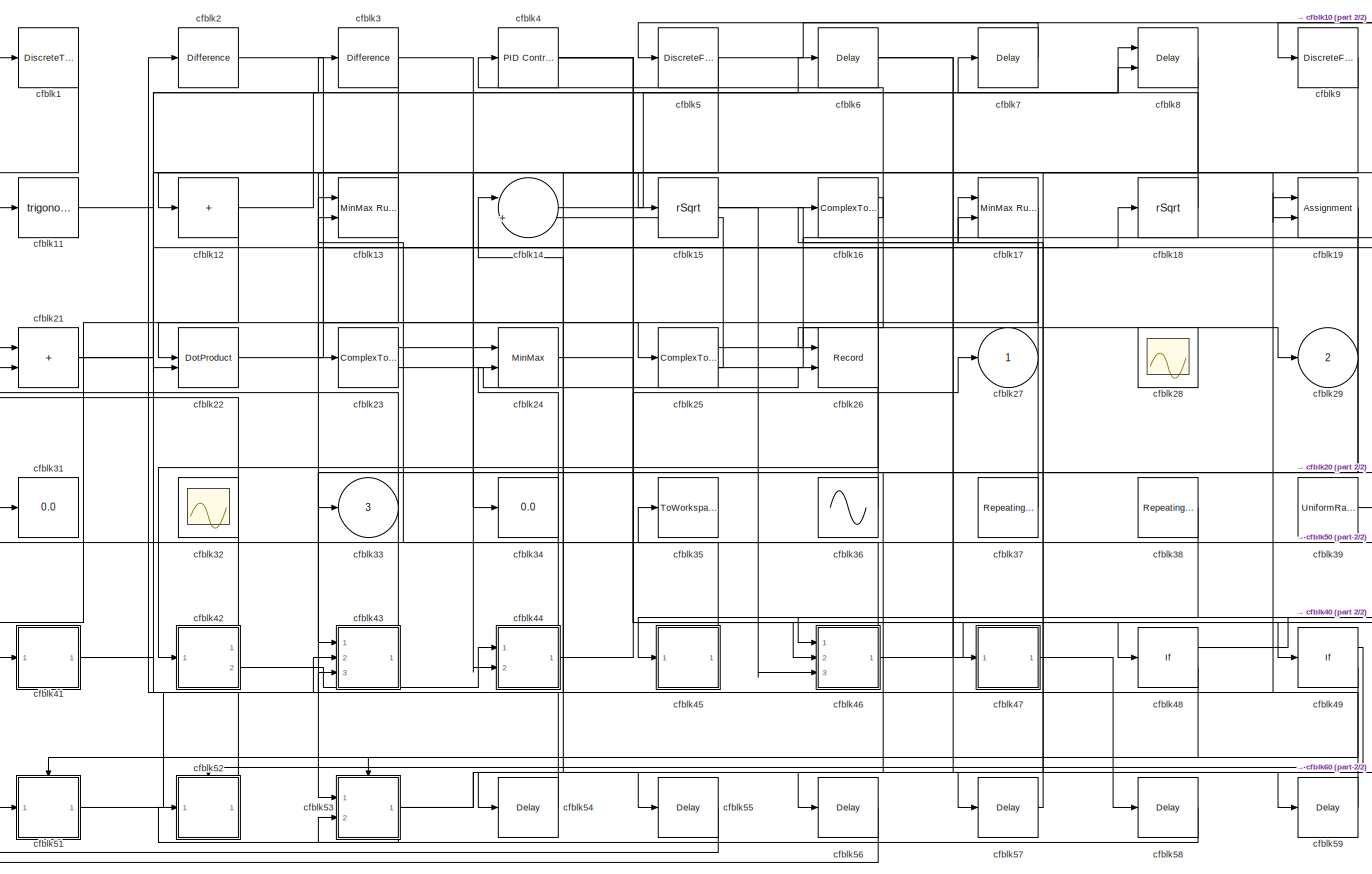
[diagram: root canvas - part 1/2, most of the canvas]
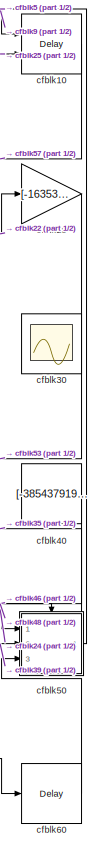
[diagram: root canvas - part 2/2, right side, full height]
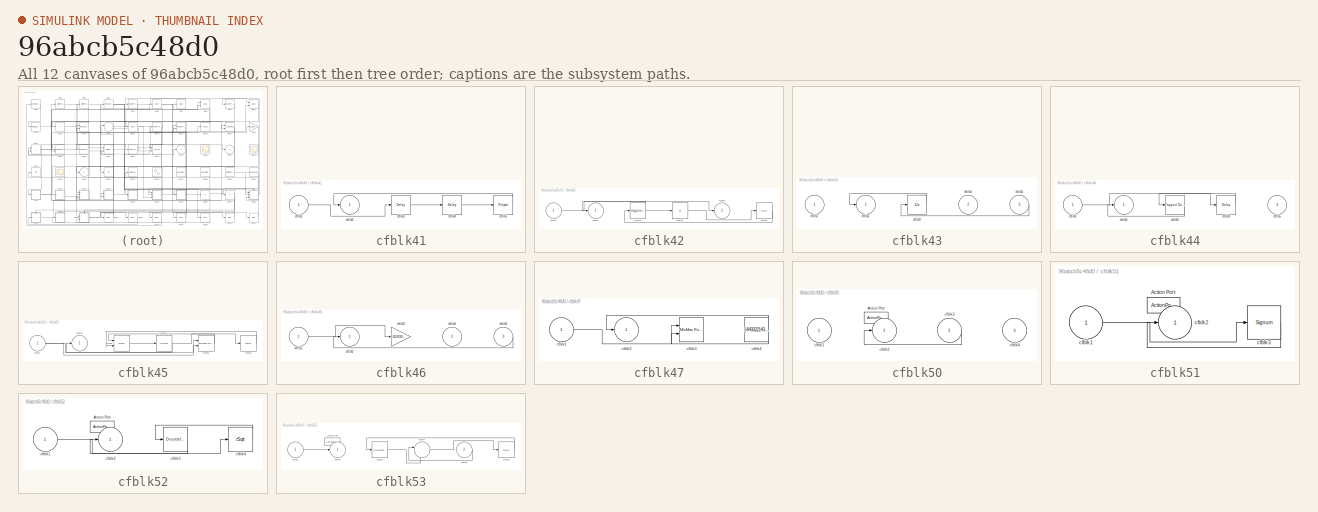
[diagram: thumbnail index - all 12 canvases of the model, root first then tree order]
MODEL slx_96abcb5c48d0
KIND model
CONFIG AbsTol = auto
CONFIG EnableMultiTasking = off
CONFIG FixedStep = auto
CONFIG MaxStep = auto
CONFIG MinStep = auto
CONFIG RelTol = 1e-3
CONFIG SampleTimeConstraint = Unconstrained
CONFIG SolverName = VariableStepAuto
CONFIG StartTime = 0.0
CONFIG StopTime = 10.0
BLOCK [DiscreteTransferFcn] cfblk1
  InputPortMap = u0
  Ports = [1, 1]
  SampleTime = 1
BLOCK [Delay] cfblk10
  InputPortMap = u0,e6
  Ports = [2, 1]
  SampleTime = 1
  ShowEnablePort = on
BLOCK [Trigonometry] cfblk11
  Ports = [1, 1]
BLOCK [Sum] cfblk12
  IconShape = rectangular
  Inputs = +
  Ports = [1, 1]
BLOCK [Reference] cfblk13  REF=simulink/Math
Operations/MinMax
Running
Resettable
  Ports = [2, 1]
  SourceBlock = simulink/Math\nOperations/MinMax\nRunning\nResettable
  SourceProductBaseCode = SL
  SourceType = MinMax Running Resettable
BLOCK [Sum] cfblk14
  Inputs = |++
  Ports = [2, 1]
BLOCK [Sqrt] cfblk15
  AlgorithmType = Newton-Raphson
  Operator = rSqrt
BLOCK [ComplexToMagnitudeAngle] cfblk16
  Ports = [1, 2]
BLOCK [Reference] cfblk17  REF=simulink/Math
Operations/MinMax
Running
Resettable
  Ports = [2, 1]
  SourceBlock = simulink/Math\nOperations/MinMax\nRunning\nResettable
  SourceProductBaseCode = SL
  SourceType = MinMax Running Resettable
BLOCK [Sqrt] cfblk18
  AlgorithmType = Newton-Raphson
  Operator = rSqrt
BLOCK [Assignment] cfblk19
  DiagnosticForDimensions = Warning
  IndexOptions = Index vector (dialog)
  Indices = 1
  OutputSizes = 1
  Ports = [2, 1]
BLOCK [Reference] cfblk2  REF=simulink/Discrete/Difference
  Ports = [1, 1]
  SourceBlock = simulink/Discrete/Difference
  SourceProductBaseCode = SL
  SourceType = Difference
BLOCK [Gain] cfblk20
  Gain = [-163537969.111800]
BLOCK [Sum] cfblk21
  IconShape = rectangular
  Ports = [2, 1]
BLOCK [DotProduct] cfblk22
  OutDataTypeStr = Inherit: Inherit via internal rule
BLOCK [ComplexToMagnitudeAngle] cfblk23
  Ports = [1, 2]
BLOCK [MinMax] cfblk24
  Function = max
  Inputs = 2
  Ports = [2, 1]
BLOCK [ComplexToMagnitudeAngle] cfblk25
  Ports = [1, 2]
BLOCK [Record] cfblk26
  CompatibilityTag = XY
  FileSettingsInternal = {"entries":[{"content":{"excelSettings":{"content":{},"type":"Streamout.ExcelSettings"}},"type":"Streamout.FileSettingStorage","uuid":"6e2f0423-9d94-49ed-921e-b4cee53c69ae"}],"packageUris":["http://schema.mathworks.com/mf0/streamout_blocks/R2020a"],"version":"1.0"}
  Layout = [1 1]
  Ports = [2]
  SignalsInternal = {"entries":[{"content":{"signals":[{"content":{"blockPath":["sampleModel249/cfblk26"],"channel":[],"dimensions":[1],"domain":"sampleModel249/cfblk26","lineColor":"#a2142f","plots":[1],"port":1,"sid":[""],"signalID":10075,"signalName":"cfblk16:1"},"type":"RecordBlkView.Signal","uuid":"b5ba7e04-05e0-48dd-9488-e1aff4e69d61"},{"content":{"blockPath":["sampleModel249/cfblk26"],"channel":[],"dimensions"...<+389ch>
  VisualizationBindings = {"xyplotplugin":{"info":[{"series":[{"bindingParametersList":[{"parameter":"X-Axis","signalID":10075,"signalName":"cfblk16:1"},{"parameter":"Y-Axis","signalID":10079,"signalName":"cfblk23:2"}],"seriesID":3476}],"subplotID":1}]}}
BLOCK [Outport] cfblk27
BLOCK [Scope] cfblk28
  Floating = on
  NumInputPorts = 1
  Ports = []
BLOCK [Outport] cfblk29
  Port = 2
BLOCK [Reference] cfblk3  REF=simulink/Discrete/Difference
  Ports = [1, 1]
  SourceBlock = simulink/Discrete/Difference
  SourceProductBaseCode = SL
  SourceType = Difference
BLOCK [Scope] cfblk30
  Floating = on
  NumInputPorts = 1
  Ports = []
BLOCK [Display] cfblk31
  Decimation = 1
  Ports = [1]
BLOCK [Scope] cfblk32
  Floating = on
  NumInputPorts = 1
  Ports = []
BLOCK [Outport] cfblk33
  Port = 3
BLOCK [Display] cfblk34
  Decimation = 1
  Ports = [1]
BLOCK [ToWorkspace] cfblk35
  FixptAsFi = on
  MaxDataPoints = inf
  Ports = [1]
  SampleTime = -1
  SaveFormat = Timeseries
  VariableName = wnzsqob
BLOCK [Sin] cfblk36
  Amplitude = [-760788028.459496]
  Bias = [-820139065.383940]
  Ports = [0, 1]
  SampleTime = 0
BLOCK [Reference] cfblk37  REF=simulink/Sources/Repeating
Sequence
Interpolated
  Ports = [0, 1]
  SourceBlock = simulink/Sources/Repeating\nSequence\nInterpolated
  SourceProductBaseCode = SL
  SourceType = Repeating Sequence Interpolated
BLOCK [Reference] cfblk38  REF=simulink/Sources/Repeating
Sequence
Stair
  Ports = [0, 1]
  SourceBlock = simulink/Sources/Repeating\nSequence\nStair
  SourceProductBaseCode = SL
  SourceType = Repeating Sequence Stair
BLOCK [UniformRandomNumber] cfblk39
  Maximum = [1142133837.843585]
  Minimum = [-5478625437.297426]
  SampleTime = 0.1
  Seed = [39530813.000000]
BLOCK [Reference] cfblk4  REF=slpidlib/PID Controller
  Ports = [1, 1]
  SourceBlock = slpidlib/PID Controller
  SourceProductBaseCode = SL
  SourceType = PID 1dof
BLOCK [Constant] cfblk40
  SampleTime = 1
  Value = [-385437919.655382]
BLOCK [SubSystem] cfblk41
  Ports = [1, 1]
  RequestExecContextInheritance = off
BLOCK [Inport] cfblk41/cfblk1
BLOCK [Outport] cfblk41/cfblk2
BLOCK [Delay] cfblk41/cfblk3
  InputPortMap = u0
  Ports = [1, 1]
  SampleTime = 1
BLOCK [Delay] cfblk41/cfblk4
  InputPortMap = u0
  Ports = [1, 1]
  SampleTime = 1
BLOCK [Polyval] cfblk41/cfblk5
  Coefs = [ +2.081618890e-019, -1.441693666e-014, +4.719686976e-010, -8.536869453e-006, +1.621573104e-001, -8.087801117e+001 ]
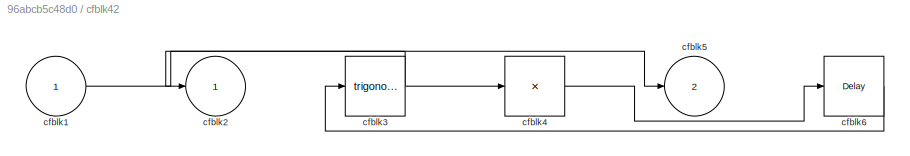
BLOCK [SubSystem] cfblk42
  Ports = [1, 2]
  RequestExecContextInheritance = off
BLOCK [Inport] cfblk42/cfblk1
BLOCK [Outport] cfblk42/cfblk2
BLOCK [Trigonometry] cfblk42/cfblk3
  Ports = [1, 1]
BLOCK [Product] cfblk42/cfblk4
  Inputs = *
  Ports = [1, 1]
BLOCK [Outport] cfblk42/cfblk5
  Port = 2
BLOCK [Delay] cfblk42/cfblk6
  InputPortMap = u0
  Ports = [1, 1]
  SampleTime = 1
BLOCK [SubSystem] cfblk43
  Ports = [3, 1]
  RequestExecContextInheritance = off
BLOCK [Inport] cfblk43/cfblk1
BLOCK [Outport] cfblk43/cfblk2
BLOCK [UnitDelay] cfblk43/cfblk3
  HasFrameUpgradeWarning = on
BLOCK [Inport] cfblk43/cfblk4
  Port = 2
BLOCK [Inport] cfblk43/cfblk5
  Port = 3
BLOCK [SubSystem] cfblk44
  Ports = [2, 1]
  RequestExecContextInheritance = off
BLOCK [Inport] cfblk44/cfblk1
BLOCK [Outport] cfblk44/cfblk2
BLOCK [Reference] cfblk44/cfblk3  REF=simulink/Discrete/Tapped Delay
  Ports = [1, 1]
  SourceBlock = simulink/Discrete/Tapped Delay
  SourceProductBaseCode = SL
  SourceType = Tapped Delay Line
BLOCK [Delay] cfblk44/cfblk4
  InputPortMap = u0
  Ports = [1, 1]
  SampleTime = 1
BLOCK [Inport] cfblk44/cfblk5
  Port = 2
BLOCK [SubSystem] cfblk45
  Ports = [1, 1]
  RequestExecContextInheritance = off
BLOCK [Inport] cfblk45/cfblk1
BLOCK [Outport] cfblk45/cfblk2
BLOCK [Delay] cfblk45/cfblk3
  DelayLengthSource = Input port
  InputPortMap = u0,p1
  Ports = [2, 1]
  SampleTime = 1
BLOCK [Polyval] cfblk45/cfblk4
  Coefs = [ +2.081618890e-019, -1.441693666e-014, +4.719686976e-010, -8.536869453e-006, +1.621573104e-001, -8.087801117e+001 ]
BLOCK [Reference] cfblk45/cfblk5  REF=simulink/Math
Operations/MinMax
Running
Resettable
  Ports = [2, 1]
  SourceBlock = simulink/Math\nOperations/MinMax\nRunning\nResettable
  SourceProductBaseCode = SL
  SourceType = MinMax Running Resettable
BLOCK [Delay] cfblk45/cfblk6
  InputPortMap = u0
  Ports = [1, 1]
  SampleTime = 1
BLOCK [SubSystem] cfblk46
  Ports = [3, 1]
  RequestExecContextInheritance = off
BLOCK [Inport] cfblk46/cfblk1
BLOCK [Outport] cfblk46/cfblk2
BLOCK [Gain] cfblk46/cfblk3
  Gain = [-920309330.477158]
BLOCK [Inport] cfblk46/cfblk4
  Port = 2
BLOCK [Inport] cfblk46/cfblk5
  Port = 3
BLOCK [SubSystem] cfblk47
  Ports = [1, 1]
  RequestExecContextInheritance = off
BLOCK [Inport] cfblk47/cfblk1
BLOCK [Outport] cfblk47/cfblk2
BLOCK [Reference] cfblk47/cfblk3  REF=simulink/Math
Operations/MinMax
Running
Resettable
  Ports = [2, 1]
  SourceBlock = simulink/Math\nOperations/MinMax\nRunning\nResettable
  SourceProductBaseCode = SL
  SourceType = MinMax Running Resettable
BLOCK [Constant] cfblk47/cfblk4
  SampleTime = 1
  Value = [-643322143.675585]
BLOCK [If] cfblk48
  IfExpression = u1 >= 0
  Ports = [1, 2]
  SampleTime = 1
BLOCK [If] cfblk49
  IfExpression = u1 >= 0
  Ports = [1, 2]
  SampleTime = 1
BLOCK [DiscreteFir] cfblk5
  InputPortMap = u0
  OutputPortMap = o0
  Ports = [1, 1]
  SampleTime = 1
BLOCK [SubSystem] cfblk50
  Ports = [3, 1, 0, 0, 0, 0, 0, 1]
  RequestExecContextInheritance = off
  TreatAsAtomicUnit = on
BLOCK [ActionPort] cfblk50/Action Port
  ActionPortLabel = if(u1 >= 0)
BLOCK [Inport] cfblk50/cfblk1
BLOCK [Outport] cfblk50/cfblk2
BLOCK [Inport] cfblk50/cfblk3
  Port = 2
BLOCK [Inport] cfblk50/cfblk4
  Port = 3
BLOCK [SubSystem] cfblk51
  Ports = [1, 1, 0, 0, 0, 0, 0, 1]
  RequestExecContextInheritance = off
  TreatAsAtomicUnit = on
BLOCK [ActionPort] cfblk51/Action Port
  ActionPortLabel = else
BLOCK [Inport] cfblk51/cfblk1
BLOCK [Outport] cfblk51/cfblk2
BLOCK [Signum] cfblk51/cfblk3
BLOCK [SubSystem] cfblk52
  Ports = [1, 1, 0, 0, 0, 0, 0, 1]
  RequestExecContextInheritance = off
  TreatAsAtomicUnit = on
BLOCK [ActionPort] cfblk52/Action Port
  ActionPortLabel = if(u1 >= 0)
BLOCK [Inport] cfblk52/cfblk1
BLOCK [Outport] cfblk52/cfblk2
BLOCK [DiscreteIntegrator] cfblk52/cfblk3
  ICPrevOutput = DiscIntNeverNeededParam
  ICPrevScaledInput = DiscIntNeverNeededParam
  InitialConditionSetting = Auto
  Ports = [1, 1]
  SampleTime = -1
BLOCK [Sqrt] cfblk52/cfblk4
  AlgorithmType = Newton-Raphson
  Operator = rSqrt
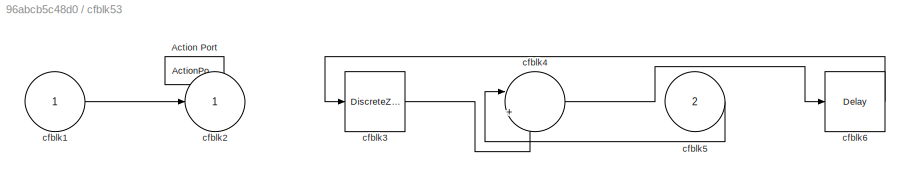
BLOCK [SubSystem] cfblk53
  Ports = [2, 1, 0, 0, 0, 0, 0, 1]
  RequestExecContextInheritance = off
  TreatAsAtomicUnit = on
BLOCK [ActionPort] cfblk53/Action Port
  ActionPortLabel = else
BLOCK [Inport] cfblk53/cfblk1
BLOCK [Outport] cfblk53/cfblk2
BLOCK [DiscreteZeroPole] cfblk53/cfblk3
  Gain = 1
  Poles = [0 0.5]
  SampleTime = -1
BLOCK [Sum] cfblk53/cfblk4
  Inputs = |++
  Ports = [2, 1]
BLOCK [Inport] cfblk53/cfblk5
  Port = 2
BLOCK [Delay] cfblk53/cfblk6
  InputPortMap = u0
  Ports = [1, 1]
BLOCK [Delay] cfblk54
  InputPortMap = u0
  Ports = [1, 1]
  SampleTime = 1
BLOCK [Delay] cfblk55
  InputPortMap = u0
  Ports = [1, 1]
  SampleTime = 1
BLOCK [Delay] cfblk56
  InputPortMap = u0
  Ports = [1, 1]
  SampleTime = 1
BLOCK [Delay] cfblk57
  InputPortMap = u0
  Ports = [1, 1]
  SampleTime = 1
BLOCK [Delay] cfblk58
  InputPortMap = u0
  Ports = [1, 1]
  SampleTime = 1
BLOCK [Delay] cfblk59
  InputPortMap = u0
  Ports = [1, 1]
  SampleTime = 1
BLOCK [Delay] cfblk6
  InputPortMap = u0
  Ports = [1, 1]
  SampleTime = 1
BLOCK [Delay] cfblk60
  InputPortMap = u0
  Ports = [1, 1]
  SampleTime = 1
BLOCK [Delay] cfblk7
  InputPortMap = u0
  Ports = [1, 1]
  SampleTime = 1
BLOCK [Delay] cfblk8
  DelayLengthSource = Input port
  InputPortMap = u0,p1
  Ports = [2, 1]
  SampleTime = 1
BLOCK [DiscreteFir] cfblk9
  InputPortMap = u0
  OutputPortMap = o0
  Ports = [1, 1]
  SampleTime = 1
LINE cfblk10:1 -> cfblk57:1
LINE cfblk11:1 -> cfblk15:1
NET cfblk12:1 -> cfblk22:1, cfblk8:2
NET cfblk13:1 -> cfblk12:1, cfblk41:1
LINE cfblk14:1 -> cfblk6:1
NET cfblk15:1 -> cfblk17:1, cfblk46:3
LINE cfblk16:1 -> cfblk26:1
NET cfblk16:2 -> cfblk42:1, cfblk4:1
LINE cfblk17:1 -> cfblk23:1
LINE cfblk18:1 -> cfblk7:1
NET cfblk19:1 -> cfblk33:1, cfblk56:1
LINE cfblk1:1 -> cfblk11:1
LINE cfblk20:1 -> cfblk53:1
NET cfblk21:1 -> cfblk3:1, cfblk8:1
LINE cfblk22:1 -> cfblk20:1
LINE cfblk23:1 -> cfblk24:1
LINE cfblk23:2 -> cfblk26:2
LINE cfblk24:1 -> cfblk50:1
LINE cfblk25:1 -> cfblk29:1
NET cfblk25:2 -> cfblk10:2, cfblk14:2
LINE cfblk2:1 -> cfblk25:1
LINE cfblk36:1 -> cfblk13:1
LINE cfblk37:1 -> cfblk16:1
LINE cfblk38:1 -> cfblk45:1
LINE cfblk39:1 -> cfblk50:2
NET cfblk3:1 -> cfblk22:2, cfblk34:1
LINE cfblk40:1 -> cfblk46:1
LINE cfblk41/cfblk1:1 -> cfblk41/cfblk3:1
LINE cfblk41/cfblk3:1 -> cfblk41/cfblk4:1
LINE cfblk41/cfblk4:1 -> cfblk41/cfblk5:1
LINE cfblk41/cfblk5:1 -> cfblk41/cfblk2:1
NET cfblk41:1 -> cfblk18:1, cfblk43:3
LINE cfblk42/cfblk1:1 -> cfblk42/cfblk5:1
NET cfblk42/cfblk3:1 -> cfblk42/cfblk2:1, cfblk42/cfblk4:1
LINE cfblk42/cfblk4:1 -> cfblk42/cfblk6:1
LINE cfblk42/cfblk6:1 -> cfblk42/cfblk3:1
LINE cfblk42:1 -> cfblk21:1
LINE cfblk42:2 -> cfblk44:1
LINE cfblk43/cfblk3:1 -> cfblk43/cfblk2:1
LINE cfblk43/cfblk5:1 -> cfblk43/cfblk3:1
LINE cfblk43:1 -> cfblk21:2
LINE cfblk44/cfblk1:1 -> cfblk44/cfblk4:1
LINE cfblk44/cfblk3:1 -> cfblk44/cfblk2:1
LINE cfblk44/cfblk4:1 -> cfblk44/cfblk3:1
NET cfblk44:1 -> cfblk24:2, cfblk27:1
NET cfblk45/cfblk1:1 -> cfblk45/cfblk5:1, cfblk45/cfblk5:2
LINE cfblk45/cfblk3:1 -> cfblk45/cfblk4:1
NET cfblk45/cfblk4:1 -> cfblk45/cfblk2:1, cfblk45/cfblk6:1
LINE cfblk45/cfblk5:1 -> cfblk45/cfblk3:1
LINE cfblk45/cfblk6:1 -> cfblk45/cfblk3:2
LINE cfblk45:1 -> cfblk31:1
LINE cfblk46/cfblk1:1 -> cfblk46/cfblk3:1
LINE cfblk46/cfblk5:1 -> cfblk46/cfblk2:1
NET cfblk46:1 -> cfblk13:2, cfblk49:1
LINE cfblk47/cfblk1:1 -> cfblk47/cfblk3:1
NET cfblk47/cfblk4:1 -> cfblk47/cfblk2:1, cfblk47/cfblk3:2
LINE cfblk47:1 -> cfblk58:1
LINE cfblk48:1 -> cfblk50:ifaction
LINE cfblk48:2 -> cfblk51:ifaction
LINE cfblk49:1 -> cfblk52:ifaction
LINE cfblk49:2 -> cfblk53:ifaction
NET cfblk4:1 -> cfblk19:2, cfblk46:2, cfblk48:1
LINE cfblk50/cfblk3:1 -> cfblk50/cfblk2:1
NET cfblk50:1 -> cfblk35:1, cfblk9:1
LINE cfblk51/cfblk1:1 -> cfblk51/cfblk3:1
LINE cfblk51/cfblk3:1 -> cfblk51/cfblk2:1
LINE cfblk51:1 -> cfblk19:1
LINE cfblk52/cfblk1:1 -> cfblk52/cfblk4:1
LINE cfblk52/cfblk3:1 -> cfblk52/cfblk2:1
LINE cfblk52/cfblk4:1 -> cfblk52/cfblk3:1
LINE cfblk52:1 -> cfblk2:1
LINE cfblk53/cfblk1:1 -> cfblk53/cfblk2:1
LINE cfblk53/cfblk3:1 -> cfblk53/cfblk4:2
LINE cfblk53/cfblk4:1 -> cfblk53/cfblk6:1
LINE cfblk53/cfblk5:1 -> cfblk53/cfblk4:1
LINE cfblk53/cfblk6:1 -> cfblk53/cfblk3:1
NET cfblk53:1 -> cfblk52:1, cfblk55:1, cfblk60:1
LINE cfblk54:1 -> cfblk43:2
LINE cfblk55:1 -> cfblk51:1
LINE cfblk56:1 -> cfblk1:1
LINE cfblk57:1 -> cfblk17:2
LINE cfblk58:1 -> cfblk53:2
LINE cfblk59:1 -> cfblk14:1
NET cfblk5:1 -> cfblk10:1, cfblk44:2
LINE cfblk60:1 -> cfblk50:3
NET cfblk6:1 -> cfblk47:1, cfblk59:1
LINE cfblk7:1 -> cfblk5:1
LINE cfblk8:1 -> cfblk54:1
LINE cfblk9:1 -> cfblk43:1
note: NET lines group one-source signal fan-out (src -> all destinations, sorted); 1:1 wires keep LINE
